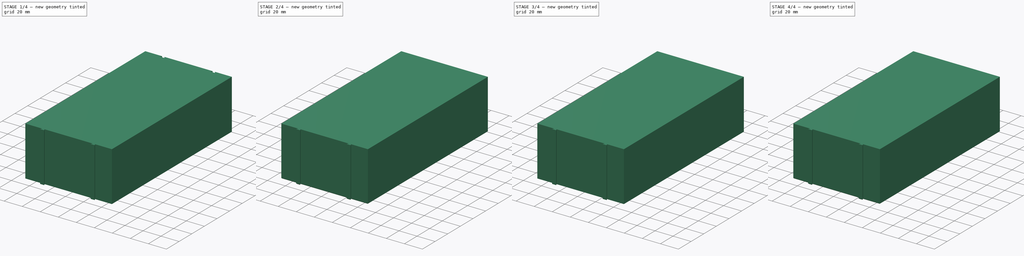
[diagram: build sequence overview — one tinted view per stage of 4, left to right]
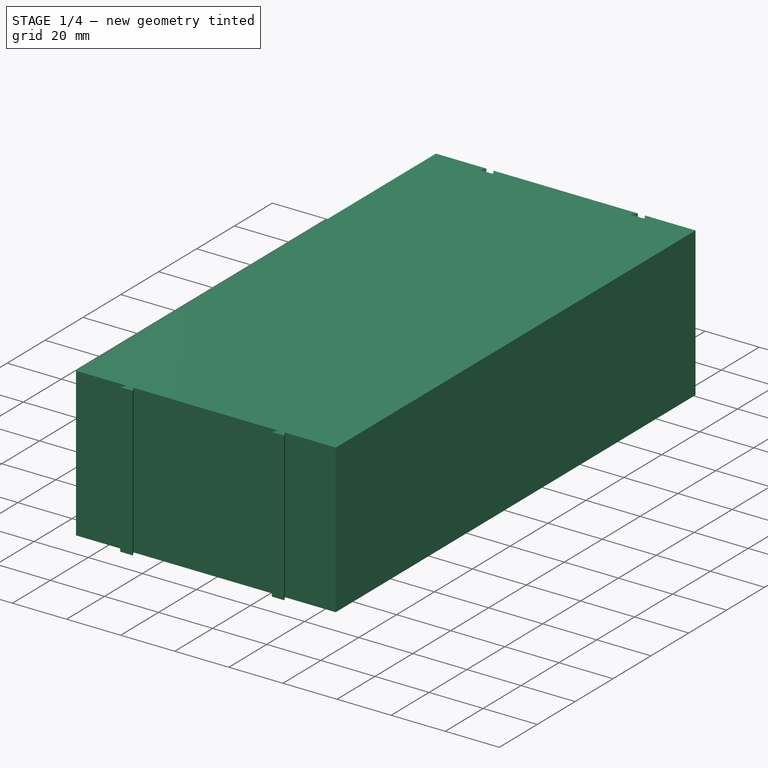
[diagram: stage 1 of 4 — iso view after this stage's code; geometry added in this stage tinted green]
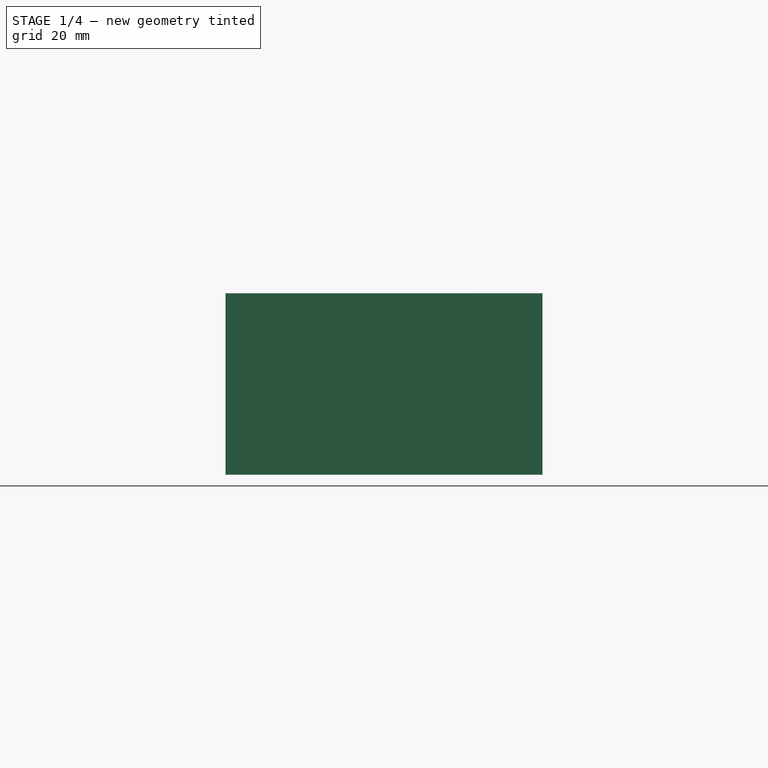
[diagram: stage 1 of 4 — front view after this stage's code; geometry added in this stage tinted green]
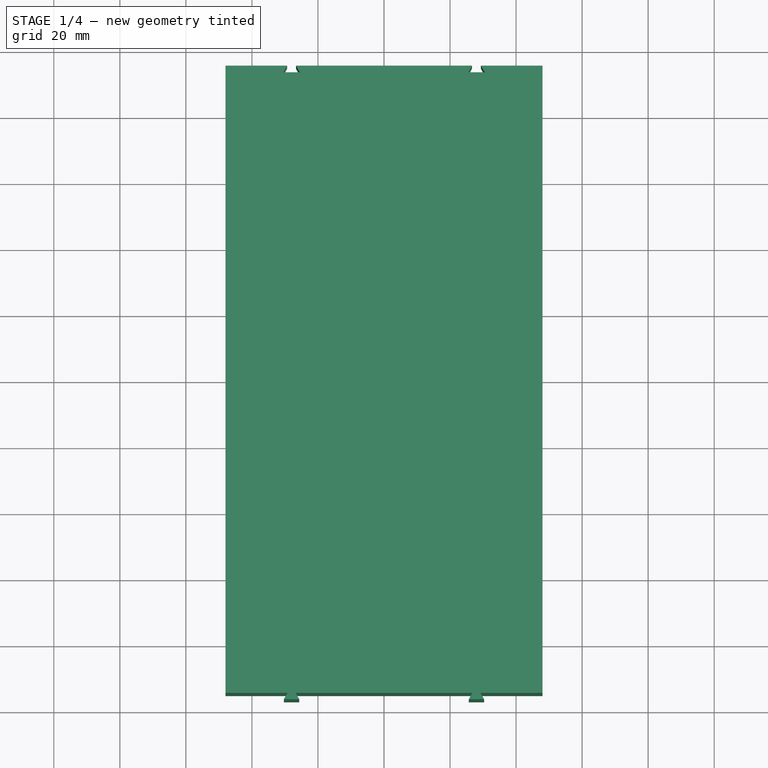
[diagram: stage 1 of 4 — top view after this stage's code; geometry added in this stage tinted green]
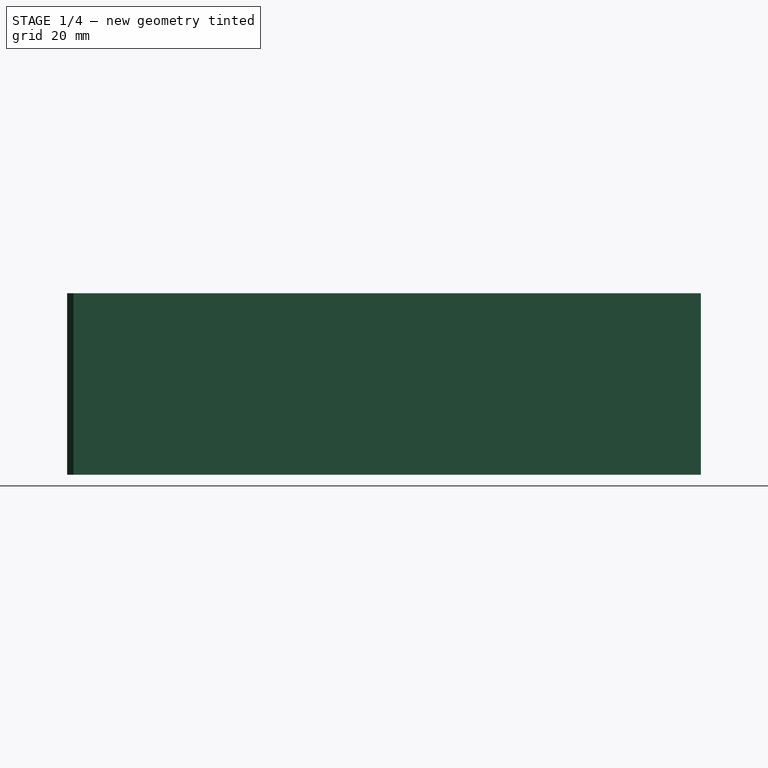
[diagram: stage 1 of 4 — right view after this stage's code; geometry added in this stage tinted green]
FCSTD DOCUMENT  (FreeCAD 0.22R34137 (Git))
Label: DrawerInsert
License: All rights reserved
LicenseURL: http://en.wikipedia.org/wiki/All_rights_reserved
objects: Sketcher::SketchObject×7, PartDesign::Body×7, PartDesign::ShapeBinder×6, PartDesign::Pad×6, PartDesign::Chamfer×6, Spreadsheet::Sheet×1
note: 44 computed .brp shape members not serialized (recipe doc carries the construction recipe); baked Part::Feature solids carry a one-line shape summary decoded from their .brp

FEATURE [PartDesign::Body] Body004  label="TL"
  Group = -> [ShapeBinder003,Sketch005,Pad003,Chamfer003]
  Origin = -> Origin004
  Tip = -> Chamfer003
FEATURE [PartDesign::ShapeBinder] ShapeBinder004
  Support = -> [Sketch002]
  TraceSupport = false
FEATURE [Sketcher::SketchObject] Sketch006
  ExternalGeometry = -> [ShapeBinder004]
  FullyConstrained = true
  MapMode = 5
  Support = -> [XY_Plane005]
  sketch-geometry (32):
    g0: LineSegment StartX=48 StartY=95 StartZ=0 EndX=29.3453 EndY=95 EndZ=0
    g1: LineSegment StartX=29.3453 StartY=95 StartZ=0 EndX=30.5 EndY=93 EndZ=0
    g2: LineSegment StartX=30.5 StartY=93 StartZ=0 EndX=25.5 EndY=93 EndZ=0
    g3: LineSegment StartX=25.5 StartY=93 StartZ=0 EndX=26.6547 EndY=95 EndZ=0
    g4: LineSegment StartX=26.6547 StartY=95 StartZ=0 EndX=-26.6547 EndY=95 EndZ=0
    g5: LineSegment StartX=-26.6547 StartY=95 StartZ=0 EndX=-25.5 EndY=93 EndZ=0
    g6: LineSegment StartX=-25.5 StartY=93 StartZ=0 EndX=-30.5 EndY=93 EndZ=0
    g7: LineSegment StartX=-30.5 StartY=93 StartZ=0 EndX=-29.3453 EndY=95 EndZ=0
    g8: LineSegment StartX=-29.3453 StartY=95 StartZ=0 EndX=-48 EndY=95 EndZ=0
    g9: LineSegment StartX=-48 StartY=95 StartZ=0 EndX=-48 EndY=76.2298 EndZ=0
    g10: LineSegment StartX=-48 StartY=76.2298 StartZ=0 EndX=-46.1 EndY=77.3268 EndZ=0
    g11: LineSegment StartX=-46.1 StartY=77.3268 StartZ=0 EndX=-46.1 EndY=72.6732 EndZ=0
    g12: LineSegment StartX=-46.1 StartY=72.6732 StartZ=0 EndX=-48 EndY=73.7702 EndZ=0
    g13: LineSegment StartX=-48 StartY=73.7702 StartZ=0 EndX=-48 EndY=1.22983 EndZ=0
    g14: LineSegment StartX=-48 StartY=1.22983 StartZ=0 EndX=-46.1 EndY=2.32679 EndZ=0
    g15: LineSegment StartX=-46.1 StartY=2.32679 StartZ=0 EndX=-46.1 EndY=-2.32679 EndZ=0
    g16: LineSegment StartX=-46.1 StartY=-2.32679 StartZ=0 EndX=-48 EndY=-1.22983 EndZ=0
    g17: LineSegment StartX=-48 StartY=-1.22983 StartZ=0 EndX=-48 EndY=-73.7702 EndZ=0
    g18: LineSegment StartX=-48 StartY=-73.7702 StartZ=0 EndX=-46.1 EndY=-72.6732 EndZ=0
    g19: LineSegment StartX=-46.1 StartY=-72.6732 StartZ=0 EndX=-46.1 EndY=-77.3268 EndZ=0
    g20: LineSegment StartX=-46.1 StartY=-77.3268 StartZ=0 EndX=-48 EndY=-76.2298 EndZ=0
    g21: LineSegment StartX=-48 StartY=-76.2298 StartZ=0 EndX=-48 EndY=-95 EndZ=0
    g22: LineSegment StartX=-48 StartY=-95 StartZ=0 EndX=-29.2298 EndY=-95 EndZ=0
    g23: LineSegment StartX=-29.2298 StartY=-95 StartZ=0 EndX=-30.3268 EndY=-96.9 EndZ=0
    g24: LineSegment StartX=-30.3268 StartY=-96.9 StartZ=0 EndX=-25.6732 EndY=-96.9 EndZ=0
    g25: LineSegment StartX=-25.6732 StartY=-96.9 StartZ=0 EndX=-26.7702 EndY=-95 EndZ=0
    g26: LineSegment StartX=-26.7702 StartY=-95 StartZ=0 EndX=26.7702 EndY=-95 EndZ=0
    g27: LineSegment StartX=26.7702 StartY=-95 StartZ=0 EndX=25.6732 EndY=-96.9 EndZ=0
    g28: LineSegment StartX=25.6732 StartY=-96.9 StartZ=0 EndX=30.3268 EndY=-96.9 EndZ=0
    g29: LineSegment StartX=30.3268 StartY=-96.9 StartZ=0 EndX=29.2298 EndY=-95 EndZ=0
    g30: LineSegment StartX=29.2298 StartY=-95 StartZ=0 EndX=48 EndY=-95 EndZ=0
    g31: LineSegment StartX=48 StartY=-95 StartZ=0 EndX=48 EndY=95 EndZ=0
  constraints (64):
    c: Coincident(g-8,g0)
    c: Coincident(g0,g-8)
    c: Coincident(g0,g1)
    c: Coincident(g1,g-9)
    c: Coincident(g1,g2)
    c: Coincident(g2,g-9)
    c: Coincident(g2,g3)
    c: Coincident(g3,g-10)
    c: Coincident(g3,g4)
    c: Coincident(g4,g-10)
    c: Coincident(g4,g5)
    c: Coincident(g5,g-11)
    c: Coincident(g5,g6)
    c: Coincident(g6,g-11)
    c: Coincident(g6,g7)
    c: Coincident(g7,g-12)
    c: Coincident(g7,g8)
    c: Coincident(g8,g-12)
    c: Coincident(g8,g9)
    c: Coincident(g9,g-13)
    c: Coincident(g9,g10)
    c: Coincident(g10,g-13)
    c: Coincident(g10,g11)
    c: Coincident(g11,g-14)
    c: Coincident(g11,g12)
    c: Coincident(g12,g-14)
    c: Coincident(g12,g13)
    c: Coincident(g13,g-18)
    c: Coincident(g13,g14)
    c: Coincident(g14,g-18)
    c: Coincident(g14,g15)
    c: Coincident(g15,g-17)
    c: Coincident(g15,g16)
    c: Coincident(g16,g-17)
    c: Coincident(g16,g17)
    c: Coincident(g17,g-16)
    c: Coincident(g17,g18)
    c: Coincident(g18,g-16)
    c: Coincident(g18,g19)
    c: Coincident(g19,g-15)
    c: Coincident(g19,g20)
    c: Coincident(g20,g-15)
    c: Coincident(g20,g21)
    c: Coincident(g21,g-3)
    c: Coincident(g21,g22)
    c: Coincident(g22,g-3)
    c: Coincident(g22,g23)
    c: Coincident(g23,g-4)
    c: Coincident(g23,g24)
    c: Coincident(g24,g-4)
    c: Coincident(g24,g25)
    c: Coincident(g25,g-5)
    c: Coincident(g25,g26)
    c: Coincident(g26,g-5)
    c: Coincident(g26,g27)
    c: Coincident(g27,g-6)
    c: Coincident(g27,g28)
    c: Coincident(g28,g-6)
    c: Coincident(g28,g29)
    c: Coincident(g29,g-7)
    c: Coincident(g29,g30)
    c: Coincident(g30,g-7)
    c: Coincident(g31,g0)
    c: Coincident(g31,g30)
FEATURE [PartDesign::Pad] Pad004
  Direction = (0,0,1)
  Length = 55
  Length2 = 10
  Profile = -> Sketch006
  ReferenceAxis = -> Sketch006 [N_Axis]
  Type = 0
  expr: Length = <<Spreadsheet>>.Height
FEATURE [PartDesign::Body] Body005  label="CR"
  Group = -> [ShapeBinder004,Sketch006,Pad004,Chamfer004]
  Origin = -> Origin005
  Tip = -> Chamfer004
FEATURE [PartDesign::ShapeBinder] ShapeBinder005
  Support = -> [Sketch002]
  TraceSupport = false
FEATURE [Sketcher::SketchObject] Sketch007
  ExternalGeometry = -> [ShapeBinder005]
  FullyConstrained = true
  MapMode = 5
  Support = -> [XY_Plane006]
  sketch-geometry (32):
    g0: LineSegment StartX=48 StartY=95 StartZ=0 EndX=29.3453 EndY=95 EndZ=0
    g1: LineSegment StartX=29.3453 StartY=95 StartZ=0 EndX=30.5 EndY=93 EndZ=0
    g2: LineSegment StartX=30.5 StartY=93 StartZ=0 EndX=25.5 EndY=93 EndZ=0
    g3: LineSegment StartX=25.5 StartY=93 StartZ=0 EndX=26.6547 EndY=95 EndZ=0
    g4: LineSegment StartX=26.6547 StartY=95 StartZ=0 EndX=-26.6547 EndY=95 EndZ=0
    g5: LineSegment StartX=-26.6547 StartY=95 StartZ=0 EndX=-25.5 EndY=93 EndZ=0
    g6: LineSegment StartX=-25.5 StartY=93 StartZ=0 EndX=-30.5 EndY=93 EndZ=0
    g7: LineSegment StartX=-30.5 StartY=93 StartZ=0 EndX=-29.3453 EndY=95 EndZ=0
    g8: LineSegment StartX=-29.3453 StartY=95 StartZ=0 EndX=-48 EndY=95 EndZ=0
    g9: LineSegment StartX=-48 StartY=95 StartZ=0 EndX=-48 EndY=-95 EndZ=0
    g10: LineSegment StartX=-48 StartY=-95 StartZ=0 EndX=-29.2298 EndY=-95 EndZ=0
    g11: LineSegment StartX=-29.2298 StartY=-95 StartZ=0 EndX=-30.3268 EndY=-96.9 EndZ=0
    g12: LineSegment StartX=-30.3268 StartY=-96.9 StartZ=0 EndX=-25.6732 EndY=-96.9 EndZ=0
    g13: LineSegment StartX=-25.6732 StartY=-96.9 StartZ=0 EndX=-26.7702 EndY=-95 EndZ=0
    g14: LineSegment StartX=-26.7702 StartY=-95 StartZ=0 EndX=26.7702 EndY=-95 EndZ=0
    g15: LineSegment StartX=26.7702 StartY=-95 StartZ=0 EndX=25.6732 EndY=-96.9 EndZ=0
    g16: LineSegment StartX=25.6732 StartY=-96.9 StartZ=0 EndX=30.3268 EndY=-96.9 EndZ=0
    g17: LineSegment StartX=30.3268 StartY=-96.9 StartZ=0 EndX=29.2298 EndY=-95 EndZ=0
    g18: LineSegment StartX=29.2298 StartY=-95 StartZ=0 EndX=48 EndY=-95 EndZ=0
    g19: LineSegment StartX=48 StartY=-95 StartZ=0 EndX=48 EndY=-76.3453 EndZ=0
    g20: LineSegment StartX=48 StartY=-76.3453 StartZ=0 EndX=46 EndY=-77.5 EndZ=0
    g21: LineSegment StartX=46 StartY=-77.5 StartZ=0 EndX=46 EndY=-72.5 EndZ=0
    g22: LineSegment StartX=46 StartY=-72.5 StartZ=0 EndX=48 EndY=-73.6547 EndZ=0
    g23: LineSegment StartX=48 StartY=-73.6547 StartZ=0 EndX=48 EndY=-1.3453 EndZ=0
    g24: LineSegment StartX=48 StartY=-1.3453 StartZ=0 EndX=46 EndY=-2.5 EndZ=0
    g25: LineSegment StartX=46 StartY=-2.5 StartZ=0 EndX=46 EndY=2.5 EndZ=0
    g26: LineSegment StartX=46 StartY=2.5 StartZ=0 EndX=48 EndY=1.3453 EndZ=0
    g27: LineSegment StartX=48 StartY=1.3453 StartZ=0 EndX=48 EndY=73.6547 EndZ=0
    g28: LineSegment StartX=48 StartY=73.6547 StartZ=0 EndX=46 EndY=72.5 EndZ=0
    g29: LineSegment StartX=46 StartY=72.5 StartZ=0 EndX=46 EndY=77.5 EndZ=0
    g30: LineSegment StartX=46 StartY=77.5 StartZ=0 EndX=48 EndY=76.3453 EndZ=0
    g31: LineSegment StartX=48 StartY=76.3453 StartZ=0 EndX=48 EndY=95 EndZ=0
  constraints (64):
    c: Coincident(g-14,g0)
    c: Coincident(g0,g-14)
    c: Coincident(g0,g1)
    c: Coincident(g1,g-15)
    c: Coincident(g1,g2)
    c: Coincident(g2,g-15)
    c: Coincident(g2,g3)
    c: Coincident(g3,g-16)
    c: Coincident(g3,g4)
    c: Coincident(g4,g-16)
    c: Coincident(g4,g5)
    c: Coincident(g5,g-17)
    c: Coincident(g5,g6)
    c: Coincident(g6,g-17)
    c: Coincident(g6,g7)
    c: Coincident(g7,g-18)
    c: Coincident(g7,g8)
    c: Coincident(g8,g-18)
    c: Coincident(g8,g9)
    c: Coincident(g10,g-3)
    c: Coincident(g10,g11)
    c: Coincident(g11,g-4)
    c: Coincident(g11,g12)
    c: Coincident(g12,g-4)
    c: Coincident(g12,g13)
    c: Coincident(g13,g-5)
    c: Coincident(g13,g14)
    c: Coincident(g14,g-5)
    c: Coincident(g14,g15)
    c: Coincident(g15,g-6)
    c: Coincident(g15,g16)
    c: Coincident(g16,g-6)
    c: Coincident(g16,g17)
    c: Coincident(g17,g-7)
    c: Coincident(g17,g18)
    c: Coincident(g18,g-7)
    c: Coincident(g18,g19)
    c: Coincident(g19,g-8)
    c: Coincident(g19,g20)
    c: Coincident(g20,g-8)
    c: Coincident(g20,g21)
    c: Coincident(g21,g-9)
    c: Coincident(g21,g22)
    c: Coincident(g22,g-9)
    c: Coincident(g22,g23)
    c: Coincident(g23,g-10)
    c: Coincident(g23,g24)
    c: Coincident(g24,g-10)
    c: Coincident(g24,g25)
    c: Coincident(g25,g-11)
    c: Coincident(g25,g26)
    c: Coincident(g26,g-11)
    c: Coincident(g26,g27)
    c: Coincident(g27,g-12)
    c: Coincident(g27,g28)
    c: Coincident(g28,g-12)
    c: Coincident(g28,g29)
    c: Coincident(g29,g-13)
    c: Coincident(g29,g30)
    c: Coincident(g30,g-13)
    c: Coincident(g30,g31)
    c: Coincident(g31,g0)
    c: Coincident(g9,g10)
    c: Coincident(g9,g-3)
FEATURE [PartDesign::Pad] Pad005
  Direction = (0,0,1)
  Length = 55
  Length2 = 10
  Profile = -> Sketch007
  ReferenceAxis = -> Sketch007 [N_Axis]
  Type = 0
  expr: Length = <<Spreadsheet>>.Height
FEATURE [PartDesign::Chamfer] Chamfer005
  Angle = 45
  Base = -> Pad005 [Face33]
  BaseFeature = -> Pad005
  ChamferType = 0
  FlipDirection = false
  Size = 0.5
  Size2 = 1
  SupportTransform = false
  UseAllEdges = false
FEATURE [PartDesign::Body] Body006  label="CL"
  Group = -> [ShapeBinder005,Sketch007,Pad005,Chamfer005]
  Origin = -> Origin006
  Tip = -> Chamfer005
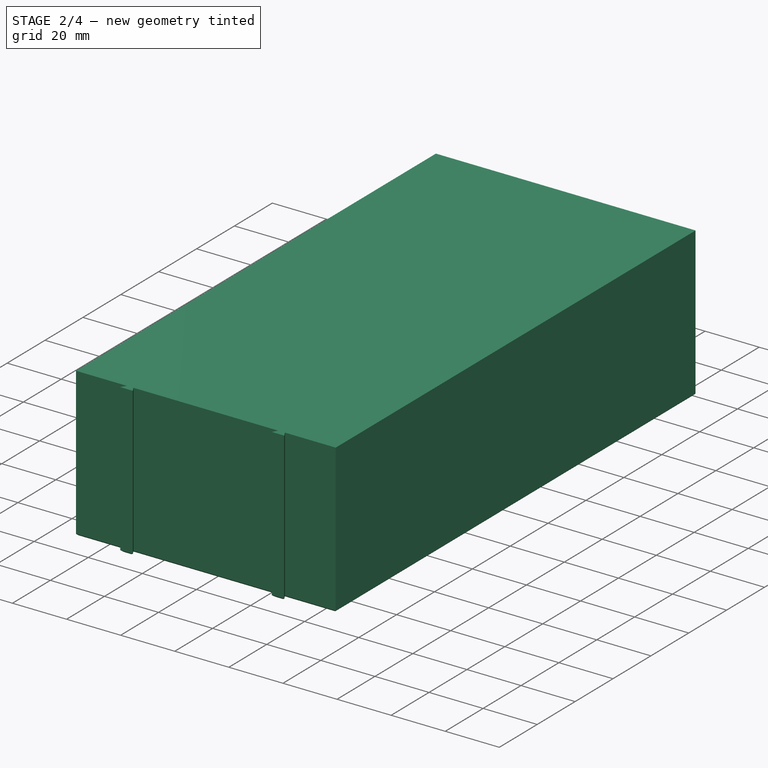
[diagram: stage 2 of 4 — iso view after this stage's code; geometry added in this stage tinted green]
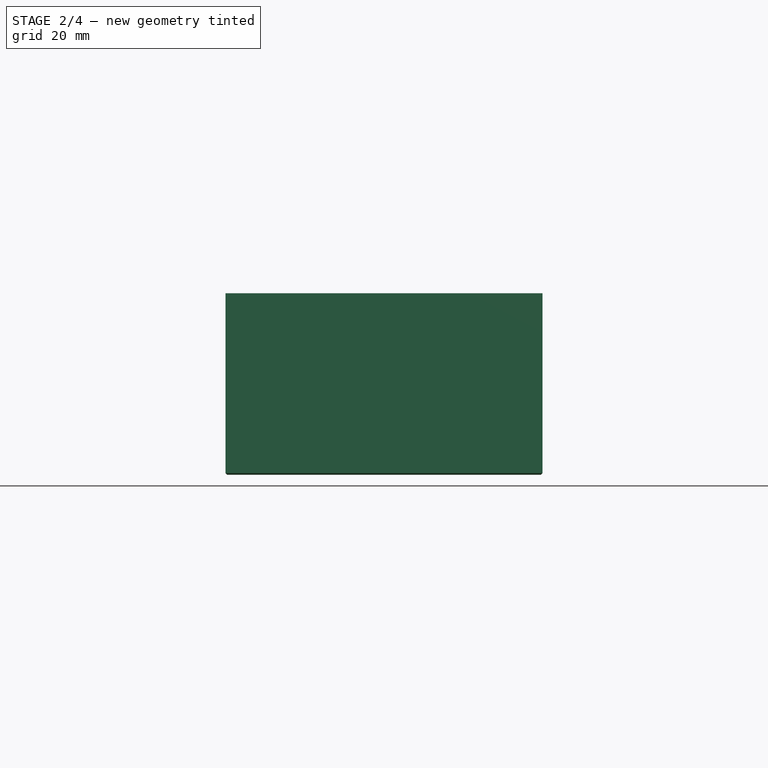
[diagram: stage 2 of 4 — front view after this stage's code; geometry added in this stage tinted green]
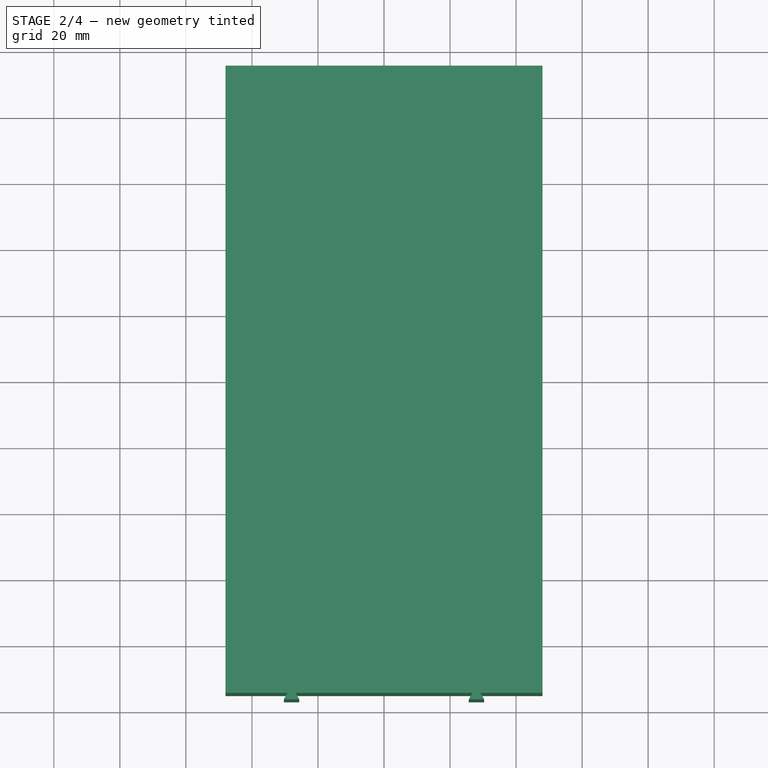
[diagram: stage 2 of 4 — top view after this stage's code; geometry added in this stage tinted green]
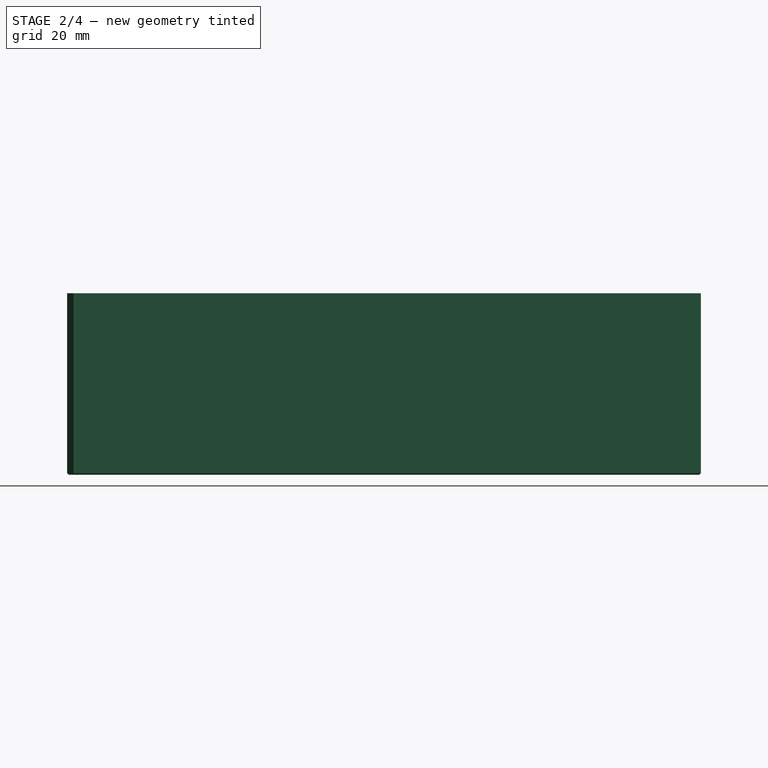
[diagram: stage 2 of 4 — right view after this stage's code; geometry added in this stage tinted green]
FEATURE [PartDesign::Body] Body003  label="TC"
  Group = -> [ShapeBinder002,Sketch004,Pad002,Chamfer002]
  Origin = -> Origin003
  Tip = -> Chamfer002
FEATURE [PartDesign::ShapeBinder] ShapeBinder003
  Support = -> [Sketch002]
  TraceSupport = false
FEATURE [Sketcher::SketchObject] Sketch005
  ExternalGeometry = -> [ShapeBinder003]
  FullyConstrained = true
  MapMode = 5
  Support = -> [XY_Plane004]
  sketch-geometry (24):
    g0: LineSegment StartX=48 StartY=95 StartZ=0 EndX=-48 EndY=95 EndZ=0
    g1: LineSegment StartX=-48 StartY=95 StartZ=0 EndX=-48 EndY=-95 EndZ=0
    g2: LineSegment StartX=-48 StartY=-95 StartZ=0 EndX=-29.2298 EndY=-95 EndZ=0
    g3: LineSegment StartX=-29.2298 StartY=-95 StartZ=0 EndX=-30.3268 EndY=-96.9 EndZ=0
    g4: LineSegment StartX=-30.3268 StartY=-96.9 StartZ=0 EndX=-25.6732 EndY=-96.9 EndZ=0
    g5: LineSegment StartX=-25.6732 StartY=-96.9 StartZ=0 EndX=-26.7702 EndY=-95 EndZ=0
    g6: LineSegment StartX=-26.7702 StartY=-95 StartZ=0 EndX=26.7702 EndY=-95 EndZ=0
    g7: LineSegment StartX=26.7702 StartY=-95 StartZ=0 EndX=25.6732 EndY=-96.9 EndZ=0
    g8: LineSegment StartX=25.6732 StartY=-96.9 StartZ=0 EndX=30.3268 EndY=-96.9 EndZ=0
    g9: LineSegment StartX=30.3268 StartY=-96.9 StartZ=0 EndX=29.2298 EndY=-95 EndZ=0
    g10: LineSegment StartX=29.2298 StartY=-95 StartZ=0 EndX=48 EndY=-95 EndZ=0
    g11: LineSegment StartX=48 StartY=-95 StartZ=0 EndX=48 EndY=-76.3453 EndZ=0
    g12: LineSegment StartX=48 StartY=-76.3453 StartZ=0 EndX=46 EndY=-77.5 EndZ=0
    g13: LineSegment StartX=46 StartY=-77.5 StartZ=0 EndX=46 EndY=-72.5 EndZ=0
    g14: LineSegment StartX=46 StartY=-72.5 StartZ=0 EndX=48 EndY=-73.6547 EndZ=0
    g15: LineSegment StartX=48 StartY=-73.6547 StartZ=0 EndX=48 EndY=-1.3453 EndZ=0
    g16: LineSegment StartX=48 StartY=-1.3453 StartZ=0 EndX=46 EndY=-2.5 EndZ=0
    g17: LineSegment StartX=46 StartY=-2.5 StartZ=0 EndX=46 EndY=2.5 EndZ=0
    g18: LineSegment StartX=46 StartY=2.5 StartZ=0 EndX=48 EndY=1.3453 EndZ=0
    g19: LineSegment StartX=48 StartY=1.3453 StartZ=0 EndX=48 EndY=73.6547 EndZ=0
    g20: LineSegment StartX=48 StartY=73.6547 StartZ=0 EndX=46 EndY=72.5 EndZ=0
    g21: LineSegment StartX=46 StartY=72.5 StartZ=0 EndX=46 EndY=77.5 EndZ=0
    g22: LineSegment StartX=46 StartY=77.5 StartZ=0 EndX=48 EndY=76.3453 EndZ=0
    g23: LineSegment StartX=48 StartY=76.3453 StartZ=0 EndX=48 EndY=95 EndZ=0
  constraints (48):
    c: Coincident(g-14,g0)
    c: Coincident(g2,g-3)
    c: Coincident(g2,g3)
    c: Coincident(g3,g-4)
    c: Coincident(g3,g4)
    c: Coincident(g4,g-4)
    c: Coincident(g4,g5)
    c: Coincident(g5,g-5)
    c: Coincident(g5,g6)
    c: Coincident(g6,g-5)
    c: Coincident(g6,g7)
    c: Coincident(g7,g-6)
    c: Coincident(g7,g8)
    c: Coincident(g8,g-6)
    c: Coincident(g8,g9)
    c: Coincident(g9,g-7)
    c: Coincident(g9,g10)
    c: Coincident(g10,g-7)
    c: Coincident(g10,g11)
    c: Coincident(g11,g-8)
    c: Coincident(g11,g12)
    c: Coincident(g12,g-8)
    c: Coincident(g12,g13)
    c: Coincident(g13,g-9)
    c: Coincident(g13,g14)
    c: Coincident(g14,g-9)
    c: Coincident(g14,g15)
    c: Coincident(g15,g-10)
    c: Coincident(g15,g16)
    c: Coincident(g16,g-10)
    c: Coincident(g16,g17)
    c: Coincident(g17,g-11)
    c: Coincident(g17,g18)
    c: Coincident(g18,g-11)
    c: Coincident(g18,g19)
    c: Coincident(g19,g-12)
    c: Coincident(g19,g20)
    c: Coincident(g20,g-12)
    c: Coincident(g20,g21)
    c: Coincident(g21,g-13)
    c: Coincident(g21,g22)
    c: Coincident(g22,g-13)
    c: Coincident(g22,g23)
    c: Coincident(g23,g0)
    c: Coincident(g0,g1)
    c: Coincident(g0,g-15)
    c: Coincident(g2,g-3)
    c: Coincident(g2,g1)
FEATURE [PartDesign::Pad] Pad003
  Direction = (0,0,1)
  Length = 55
  Length2 = 10
  Profile = -> Sketch005
  ReferenceAxis = -> Sketch005 [N_Axis]
  Type = 0
  expr: Length = <<Spreadsheet>>.Height
FEATURE [PartDesign::Chamfer] Chamfer003
  Angle = 45
  Base = -> Pad003 [Face25]
  BaseFeature = -> Pad003
  ChamferType = 0
  FlipDirection = false
  Size = 0.5
  Size2 = 1
  SupportTransform = false
  UseAllEdges = false
FEATURE [PartDesign::Chamfer] Chamfer004
  Angle = 45
  Base = -> Pad004 [Face33]
  BaseFeature = -> Pad004
  ChamferType = 0
  FlipDirection = false
  Size = 0.5
  Size2 = 1
  SupportTransform = false
  UseAllEdges = false
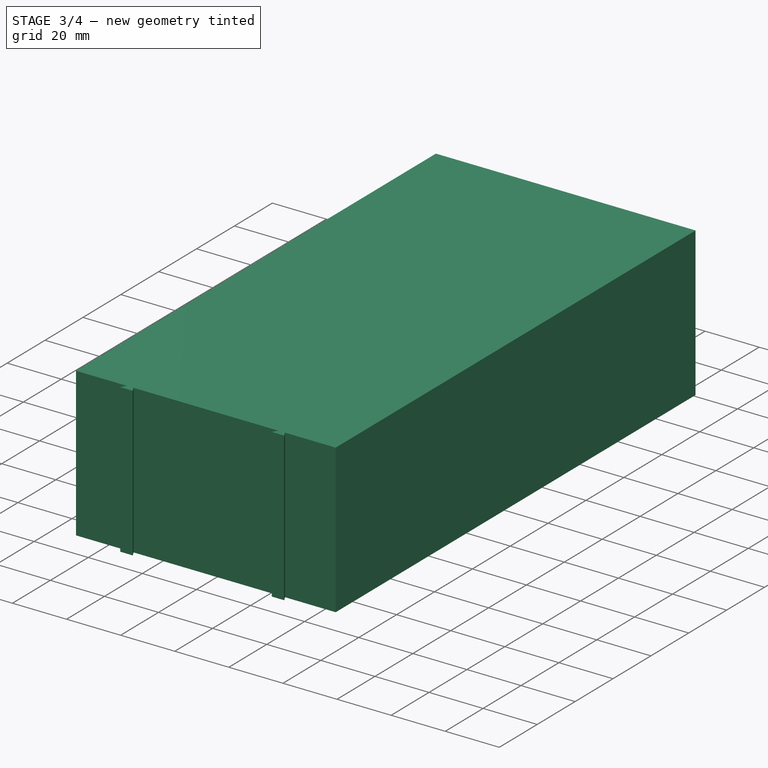
[diagram: stage 3 of 4 — iso view after this stage's code; geometry added in this stage tinted green]
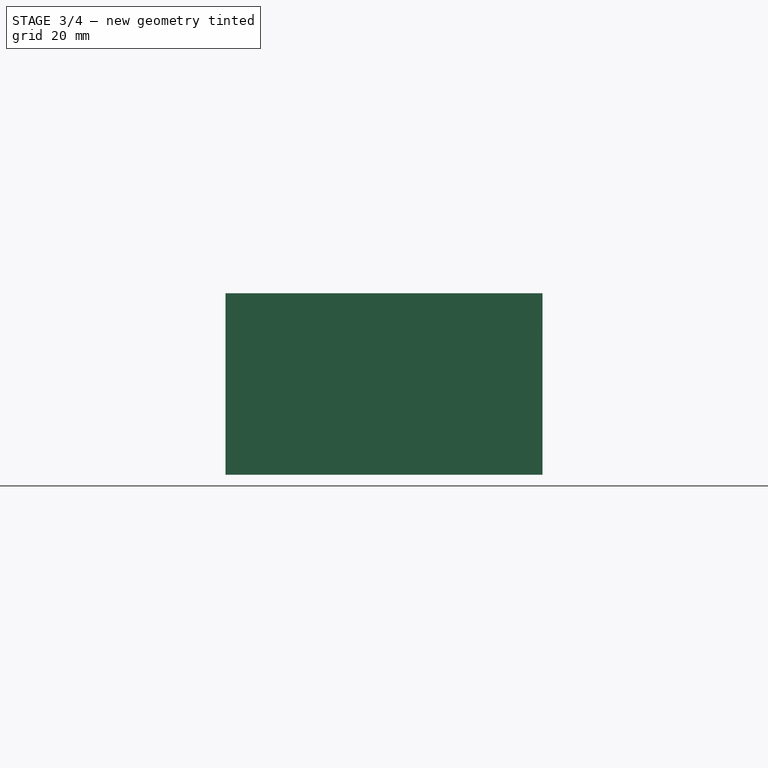
[diagram: stage 3 of 4 — front view after this stage's code; geometry added in this stage tinted green]
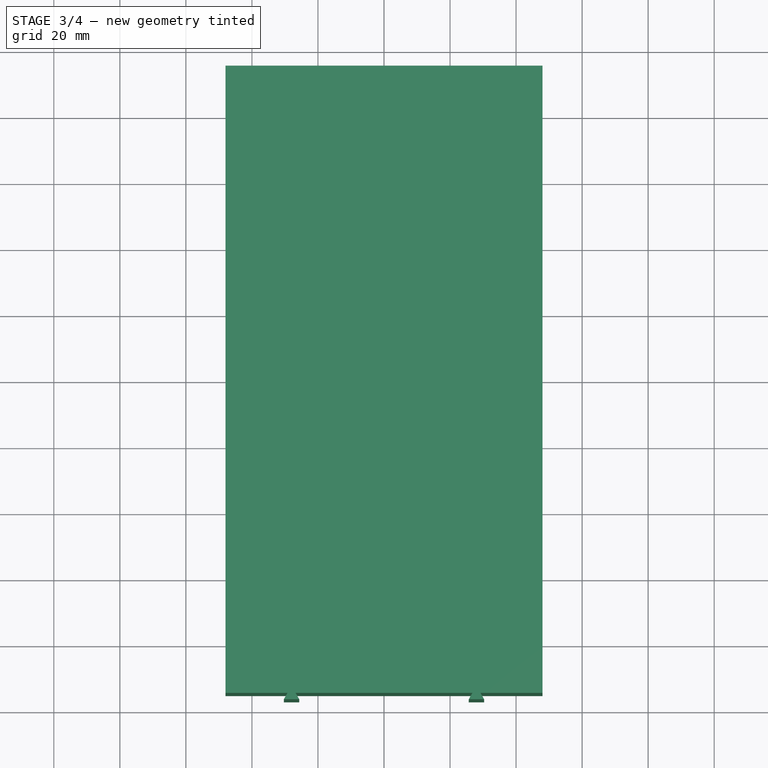
[diagram: stage 3 of 4 — top view after this stage's code; geometry added in this stage tinted green]
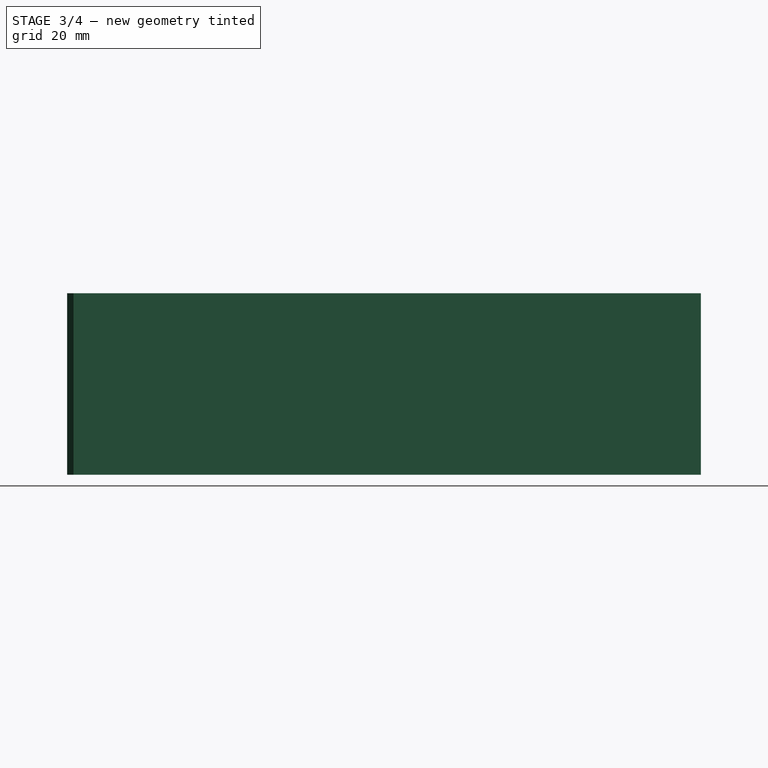
[diagram: stage 3 of 4 — right view after this stage's code; geometry added in this stage tinted green]
FEATURE [PartDesign::Body] Body001  label="CC"
  Group = -> [ShapeBinder,Sketch,Pad,Chamfer]
  Origin = -> Origin001
  Tip = -> Chamfer
FEATURE [PartDesign::ShapeBinder] ShapeBinder001
  Support = -> [Sketch002]
  TraceSupport = false
FEATURE [Sketcher::SketchObject] Sketch003
  ExternalGeometry = -> [ShapeBinder001]
  FullyConstrained = true
  MapMode = 5
  Support = -> [XY_Plane002]
  sketch-geometry (24):
    g0: LineSegment StartX=48 StartY=95 StartZ=0 EndX=-48 EndY=95 EndZ=0
    g1: LineSegment StartX=-48 StartY=95 StartZ=0 EndX=-48 EndY=76.2298 EndZ=0
    g2: LineSegment StartX=-48 StartY=76.2298 StartZ=0 EndX=-46.1 EndY=77.3268 EndZ=0
    g3: LineSegment StartX=-46.1 StartY=77.3268 StartZ=0 EndX=-46.1 EndY=72.6732 EndZ=0
    g4: LineSegment StartX=-46.1 StartY=72.6732 StartZ=0 EndX=-48 EndY=73.7702 EndZ=0
    g5: LineSegment StartX=-48 StartY=73.7702 StartZ=0 EndX=-48 EndY=1.22983 EndZ=0
    g6: LineSegment StartX=-48 StartY=1.22983 StartZ=0 EndX=-46.1 EndY=2.32679 EndZ=0
    g7: LineSegment StartX=-46.1 StartY=2.32679 StartZ=0 EndX=-46.1 EndY=-2.32679 EndZ=0
    g8: LineSegment StartX=-46.1 StartY=-2.32679 StartZ=0 EndX=-48 EndY=-1.22983 EndZ=0
    g9: LineSegment StartX=-48 StartY=-1.22983 StartZ=0 EndX=-48 EndY=-73.7702 EndZ=0
    g10: LineSegment StartX=-48 StartY=-73.7702 StartZ=0 EndX=-46.1 EndY=-72.6732 EndZ=0
    g11: LineSegment StartX=-46.1 StartY=-72.6732 StartZ=0 EndX=-46.1 EndY=-77.3268 EndZ=0
    g12: LineSegment StartX=-46.1 StartY=-77.3268 StartZ=0 EndX=-48 EndY=-76.2298 EndZ=0
    g13: LineSegment StartX=-48 StartY=-76.2298 StartZ=0 EndX=-48 EndY=-95 EndZ=0
    g14: LineSegment StartX=-48 StartY=-95 StartZ=0 EndX=-29.2298 EndY=-95 EndZ=0
    g15: LineSegment StartX=-29.2298 StartY=-95 StartZ=0 EndX=-30.3268 EndY=-96.9 EndZ=0
    g16: LineSegment StartX=-30.3268 StartY=-96.9 StartZ=0 EndX=-25.6732 EndY=-96.9 EndZ=0
    g17: LineSegment StartX=-25.6732 StartY=-96.9 StartZ=0 EndX=-26.7702 EndY=-95 EndZ=0
    g18: LineSegment StartX=-26.7702 StartY=-95 StartZ=0 EndX=26.7702 EndY=-95 EndZ=0
    g19: LineSegment StartX=26.7702 StartY=-95 StartZ=0 EndX=25.6732 EndY=-96.9 EndZ=0
    g20: LineSegment StartX=25.6732 StartY=-96.9 StartZ=0 EndX=30.3268 EndY=-96.9 EndZ=0
    g21: LineSegment StartX=30.3268 StartY=-96.9 StartZ=0 EndX=29.2298 EndY=-95 EndZ=0
    g22: LineSegment StartX=29.2298 StartY=-95 StartZ=0 EndX=48 EndY=-95 EndZ=0
    g23: LineSegment StartX=48 StartY=-95 StartZ=0 EndX=48 EndY=95 EndZ=0
  constraints (48):
    c: Coincident(g0,g-9)
    c: Coincident(g0,g1)
    c: Coincident(g1,g-10)
    c: Coincident(g1,g2)
    c: Coincident(g2,g-10)
    c: Coincident(g2,g3)
    c: Coincident(g3,g-11)
    c: Coincident(g3,g4)
    c: Coincident(g4,g-11)
    c: Coincident(g4,g5)
    c: Coincident(g5,g-15)
    c: Coincident(g5,g6)
    c: Coincident(g6,g-15)
    c: Coincident(g6,g7)
    c: Coincident(g7,g-14)
    c: Coincident(g7,g8)
    c: Coincident(g8,g-14)
    c: Coincident(g8,g9)
    c: Coincident(g9,g-13)
    c: Coincident(g9,g10)
    c: Coincident(g10,g-13)
    c: Coincident(g10,g11)
    c: Coincident(g11,g-12)
    c: Coincident(g11,g12)
    c: Coincident(g12,g-12)
    c: Coincident(g12,g13)
    c: Coincident(g13,g-3)
    c: Coincident(g13,g14)
    c: Coincident(g14,g-3)
    c: Coincident(g14,g15)
    c: Coincident(g15,g-4)
    c: Coincident(g15,g16)
    c: Coincident(g16,g-4)
    c: Coincident(g16,g17)
    c: Coincident(g17,g-5)
    c: Coincident(g17,g18)
    c: Coincident(g18,g-5)
    c: Coincident(g18,g19)
    c: Coincident(g19,g-6)
    c: Coincident(g19,g20)
    c: Coincident(g20,g-6)
    c: Coincident(g20,g21)
    c: Coincident(g21,g-7)
    c: Coincident(g21,g22)
    c: Coincident(g22,g-7)
    c: Coincident(g0,g23)
    c: Coincident(g0,g-8)
    c: Coincident(g23,g22)
FEATURE [PartDesign::Pad] Pad001
  Direction = (0,0,1)
  Length = 55
  Length2 = 10
  Profile = -> Sketch003
  ReferenceAxis = -> Sketch003 [N_Axis]
  Type = 0
  expr: Length = <<Spreadsheet>>.Height
FEATURE [PartDesign::Body] Body002  label="TR"
  Group = -> [ShapeBinder001,Sketch003,Pad001,Chamfer001]
  Origin = -> Origin002
  Tip = -> Chamfer001
FEATURE [PartDesign::ShapeBinder] ShapeBinder002
  Support = -> [Sketch002]
  TraceSupport = false
FEATURE [Sketcher::SketchObject] Sketch004
  ExternalGeometry = -> [ShapeBinder002]
  FullyConstrained = true
  MapMode = 5
  Support = -> [XY_Plane003]
  sketch-geometry (36):
    g0: LineSegment StartX=48 StartY=95 StartZ=0 EndX=-48 EndY=95 EndZ=0
    g1: LineSegment StartX=-48 StartY=95 StartZ=0 EndX=-48 EndY=76.2298 EndZ=0
    g2: LineSegment StartX=-48 StartY=76.2298 StartZ=0 EndX=-46.1 EndY=77.3268 EndZ=0
    g3: LineSegment StartX=-46.1 StartY=77.3268 StartZ=0 EndX=-46.1 EndY=72.6732 EndZ=0
    g4: LineSegment StartX=-46.1 StartY=72.6732 StartZ=0 EndX=-48 EndY=73.7702 EndZ=0
    g5: LineSegment StartX=-48 StartY=73.7702 StartZ=0 EndX=-48 EndY=1.22983 EndZ=0
    g6: LineSegment StartX=-48 StartY=1.22983 StartZ=0 EndX=-46.1 EndY=2.32679 EndZ=0
    g7: LineSegment StartX=-46.1 StartY=2.32679 StartZ=0 EndX=-46.1 EndY=-2.32679 EndZ=0
    g8: LineSegment StartX=-46.1 StartY=-2.32679 StartZ=0 EndX=-48 EndY=-1.22983 EndZ=0
    g9: LineSegment StartX=-48 StartY=-1.22983 StartZ=0 EndX=-48 EndY=-73.7702 EndZ=0
    g10: LineSegment StartX=-48 StartY=-73.7702 StartZ=0 EndX=-46.1 EndY=-72.6732 EndZ=0
    g11: LineSegment StartX=-46.1 StartY=-72.6732 StartZ=0 EndX=-46.1 EndY=-77.3268 EndZ=0
    g12: LineSegment StartX=-46.1 StartY=-77.3268 StartZ=0 EndX=-48 EndY=-76.2298 EndZ=0
    g13: LineSegment StartX=-48 StartY=-76.2298 StartZ=0 EndX=-48 EndY=-95 EndZ=0
    g14: LineSegment StartX=-48 StartY=-95 StartZ=0 EndX=-29.2298 EndY=-95 EndZ=0
    g15: LineSegment StartX=-29.2298 StartY=-95 StartZ=0 EndX=-30.3268 EndY=-96.9 EndZ=0
    g16: LineSegment StartX=-30.3268 StartY=-96.9 StartZ=0 EndX=-25.6732 EndY=-96.9 EndZ=0
    g17: LineSegment StartX=-25.6732 StartY=-96.9 StartZ=0 EndX=-26.7702 EndY=-95 EndZ=0
    g18: LineSegment StartX=-26.7702 StartY=-95 StartZ=0 EndX=26.7702 EndY=-95 EndZ=0
    g19: LineSegment StartX=26.7702 StartY=-95 StartZ=0 EndX=25.6732 EndY=-96.9 EndZ=0
    g20: LineSegment StartX=25.6732 StartY=-96.9 StartZ=0 EndX=30.3268 EndY=-96.9 EndZ=0
    g21: LineSegment StartX=30.3268 StartY=-96.9 StartZ=0 EndX=29.2298 EndY=-95 EndZ=0
    g22: LineSegment StartX=29.2298 StartY=-95 StartZ=0 EndX=48 EndY=-95 EndZ=0
    g23: LineSegment StartX=48 StartY=-95 StartZ=0 EndX=48 EndY=-76.3453 EndZ=0
    g24: LineSegment StartX=48 StartY=-76.3453 StartZ=0 EndX=46 EndY=-77.5 EndZ=0
    g25: LineSegment StartX=46 StartY=-77.5 StartZ=0 EndX=46 EndY=-72.5 EndZ=0
    g26: LineSegment StartX=46 StartY=-72.5 StartZ=0 EndX=48 EndY=-73.6547 EndZ=0
    g27: LineSegment StartX=48 StartY=-73.6547 StartZ=0 EndX=48 EndY=-1.3453 EndZ=0
    g28: LineSegment StartX=48 StartY=-1.3453 StartZ=0 EndX=46 EndY=-2.5 EndZ=0
    g29: LineSegment StartX=46 StartY=-2.5 StartZ=0 EndX=46 EndY=2.5 EndZ=0
    g30: LineSegment StartX=46 StartY=2.5 StartZ=0 EndX=48 EndY=1.3453 EndZ=0
    g31: LineSegment StartX=48 StartY=1.3453 StartZ=0 EndX=48 EndY=73.6547 EndZ=0
    g32: LineSegment StartX=48 StartY=73.6547 StartZ=0 EndX=46 EndY=72.5 EndZ=0
    g33: LineSegment StartX=46 StartY=72.5 StartZ=0 EndX=46 EndY=77.5 EndZ=0
    g34: LineSegment StartX=46 StartY=77.5 StartZ=0 EndX=48 EndY=76.3453 EndZ=0
    g35: LineSegment StartX=48 StartY=76.3453 StartZ=0 EndX=48 EndY=95 EndZ=0
  constraints (72):
    c: Coincident(g0,g-15)
    c: Coincident(g0,g1)
    c: Coincident(g1,g-16)
    c: Coincident(g1,g2)
    c: Coincident(g2,g-16)
    c: Coincident(g2,g3)
    c: Coincident(g3,g-17)
    c: Coincident(g3,g4)
    c: Coincident(g4,g-17)
    c: Coincident(g4,g5)
    c: Coincident(g5,g-21)
    c: Coincident(g5,g6)
    c: Coincident(g6,g-21)
    c: Coincident(g6,g7)
    c: Coincident(g7,g-20)
    c: Coincident(g7,g8)
    c: Coincident(g8,g-20)
    c: Coincident(g8,g9)
    c: Coincident(g9,g-19)
    c: Coincident(g9,g10)
    c: Coincident(g10,g-19)
    c: Coincident(g10,g11)
    c: Coincident(g11,g-18)
    c: Coincident(g11,g12)
    c: Coincident(g12,g-18)
    c: Coincident(g12,g13)
    c: Coincident(g13,g-3)
    c: Coincident(g13,g14)
    c: Coincident(g14,g-3)
    c: Coincident(g14,g15)
    c: Coincident(g15,g-4)
    c: Coincident(g15,g16)
    c: Coincident(g16,g-4)
    c: Coincident(g16,g17)
    c: Coincident(g17,g-5)
    c: Coincident(g17,g18)
    c: Coincident(g18,g-5)
    c: Coincident(g18,g19)
    c: Coincident(g19,g-6)
    c: Coincident(g19,g20)
    c: Coincident(g20,g-6)
    c: Coincident(g20,g21)
    c: Coincident(g21,g-7)
    c: Coincident(g21,g22)
    c: Coincident(g22,g-7)
    c: Coincident(g22,g23)
    c: Coincident(g23,g-8)
    c: Coincident(g23,g24)
    c: Coincident(g24,g-8)
    c: Coincident(g24,g25)
    c: Coincident(g25,g-9)
    c: Coincident(g25,g26)
    c: Coincident(g26,g-9)
    c: Coincident(g26,g27)
    c: Coincident(g27,g-10)
    c: Coincident(g27,g28)
    c: Coincident(g28,g-10)
    c: Coincident(g28,g29)
    c: Coincident(g29,g-11)
    c: Coincident(g29,g30)
    c: Coincident(g30,g-11)
    c: Coincident(g30,g31)
    c: Coincident(g31,g-12)
    c: Coincident(g31,g32)
    c: Coincident(g32,g-12)
    c: Coincident(g32,g33)
    c: Coincident(g33,g-13)
    c: Coincident(g33,g34)
    c: Coincident(g34,g-13)
    c: Coincident(g34,g35)
    c: Coincident(g35,g-14)
    c: Coincident(g0,g35)
FEATURE [PartDesign::Pad] Pad002
  Direction = (0,0,1)
  Length = 55
  Length2 = 10
  Profile = -> Sketch004
  ReferenceAxis = -> Sketch004 [N_Axis]
  Type = 0
  expr: Length = <<Spreadsheet>>.Height
FEATURE [PartDesign::Chamfer] Chamfer002
  Angle = 45
  Base = -> Pad002 [Face37]
  BaseFeature = -> Pad002
  ChamferType = 0
  FlipDirection = false
  Size = 0.5
  Size2 = 1
  SupportTransform = false
  UseAllEdges = false
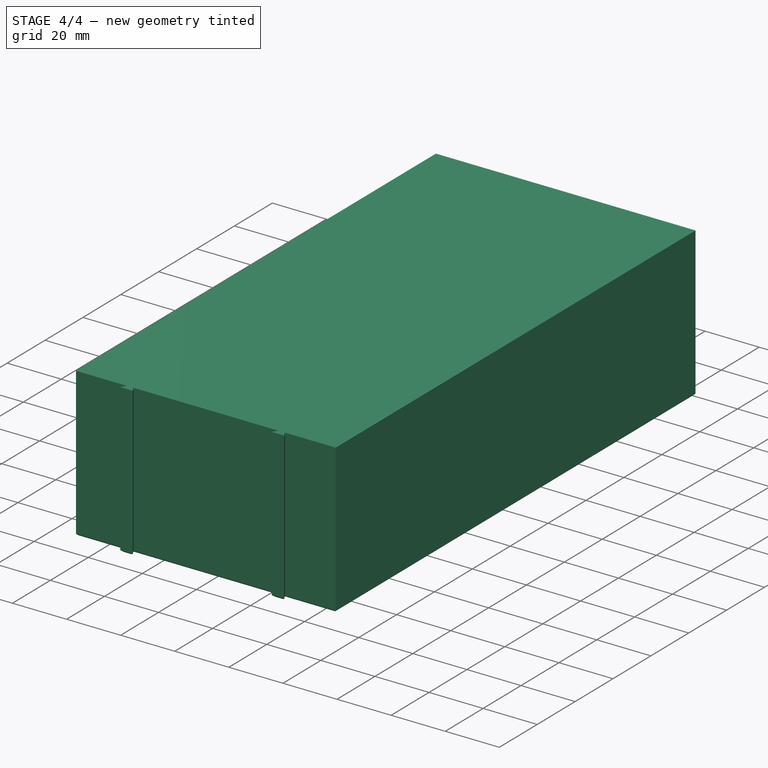
[diagram: stage 4 of 4 — iso view after this stage's code; geometry added in this stage tinted green]
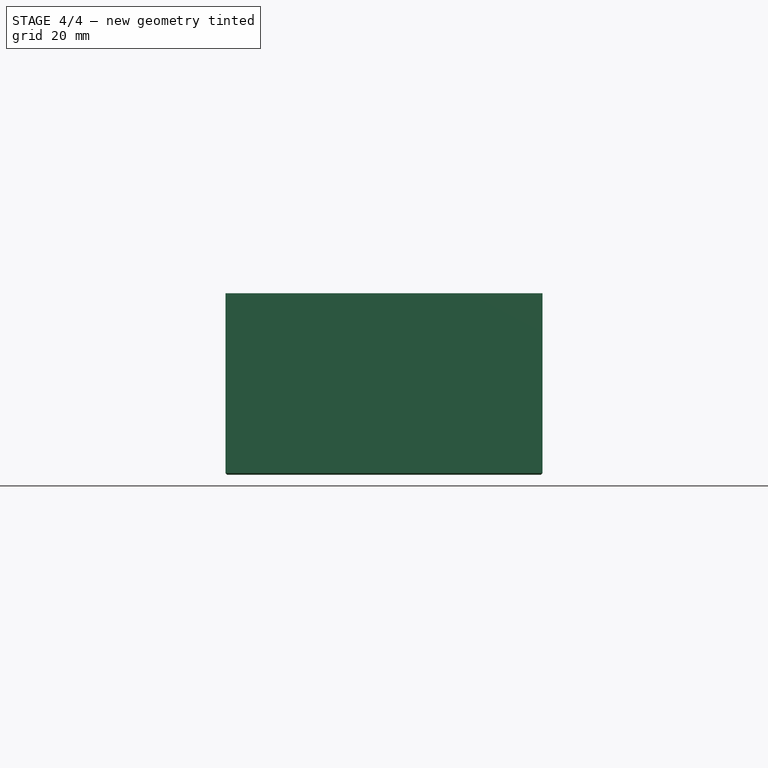
[diagram: stage 4 of 4 — front view after this stage's code; geometry added in this stage tinted green]
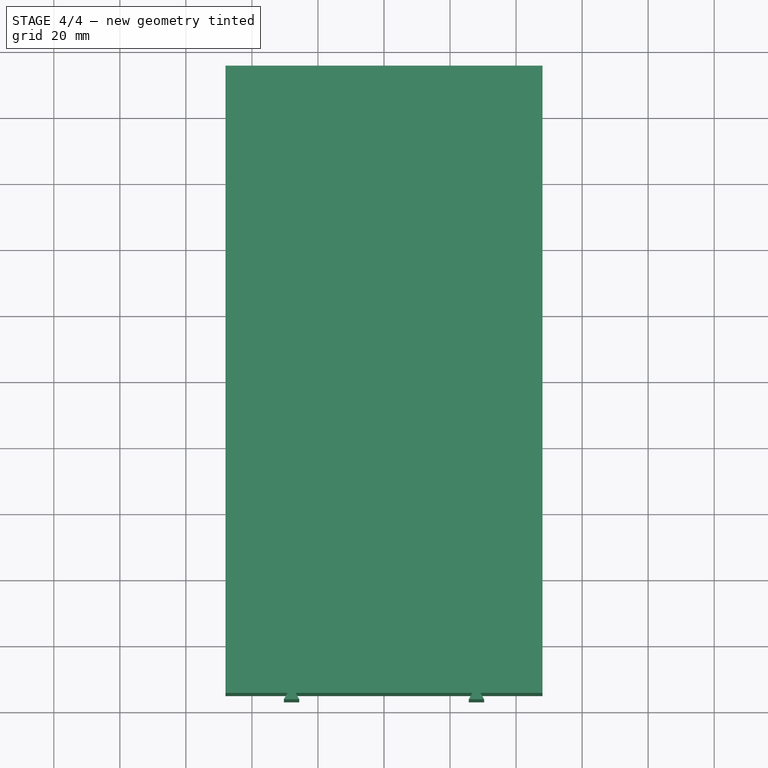
[diagram: stage 4 of 4 — top view after this stage's code; geometry added in this stage tinted green]
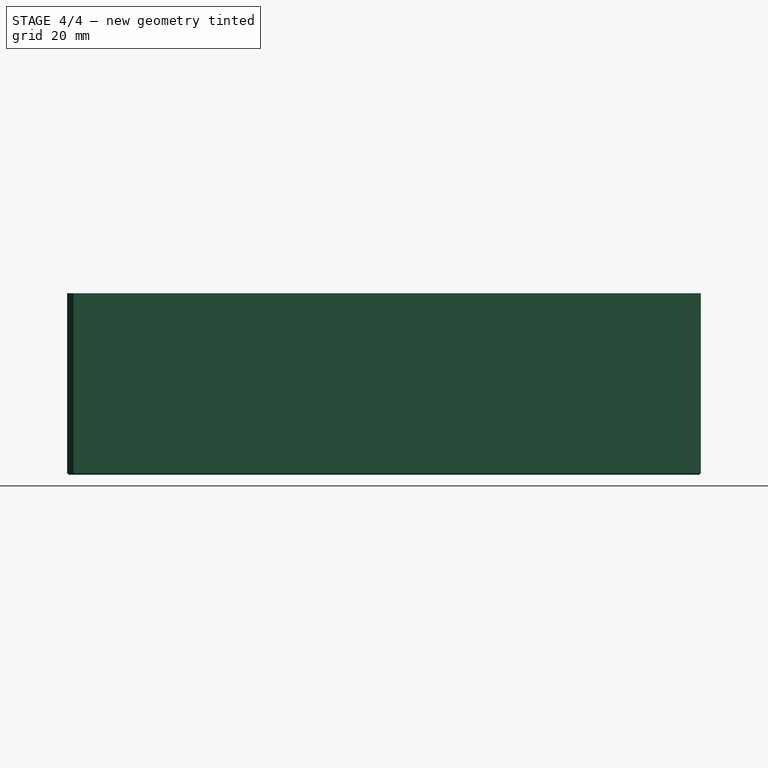
[diagram: stage 4 of 4 — right view after this stage's code; geometry added in this stage tinted green]
FEATURE [Spreadsheet::Sheet] Spreadsheet
  cells = B2='Tolerance; C2(Tolerance)==0.1 mm; B3='Height; C3(Height)==55 mm; B4='LockWidth; C4(LockWidth)==5 mm; B5='LockDepth; C5(LockDepth)==2 mm; B6='LockAngle; C6(LockAngle)==60 °
FEATURE [Sketcher::SketchObject] Sketch002  label="Template"
  FullyConstrained = true
  MapMode = 5
  Support = -> [XY_Plane]
  expr: Constraints[152] = <<Spreadsheet>>.Tolerance
  expr: Constraints[163] = <<Spreadsheet>>.LockDepth
  expr: Constraints[41] = <<Spreadsheet>>.LockWidth
  expr: Constraints[46] = <<Spreadsheet>>.LockAngle
  sketch-geometry (69):
    g0: LineSegment StartX=-48 StartY=95 StartZ=0 EndX=-29.3453 EndY=95 EndZ=0
    g1: LineSegment StartX=-29.3453 StartY=95 StartZ=0 EndX=-26.6547 EndY=95 EndZ=0
    g2: LineSegment StartX=48 StartY=95 StartZ=0 EndX=48 EndY=76.3453 EndZ=0
    g3: LineSegment StartX=48 StartY=76.3453 StartZ=0 EndX=48 EndY=73.6547 EndZ=0
    g4: LineSegment StartX=48 StartY=73.6547 StartZ=0 EndX=48 EndY=1.3453 EndZ=0
    g5: LineSegment StartX=48 StartY=1.3453 StartZ=0 EndX=48 EndY=-1.3453 EndZ=0
    g6: LineSegment StartX=-29.2298 StartY=-95 StartZ=0 EndX=-48 EndY=-95 EndZ=0
    g7: LineSegment StartX=-26.7702 StartY=-95 StartZ=0 EndX=-29.2298 EndY=-95 EndZ=0
    g8: LineSegment StartX=-48 StartY=-1.22983 StartZ=0 EndX=-48 EndY=1.22983 EndZ=0
    g9: LineSegment StartX=-48 StartY=1.22983 StartZ=0 EndX=-48 EndY=73.7702 EndZ=0
    g10: LineSegment StartX=-48 StartY=73.7702 StartZ=0 EndX=-48 EndY=76.2298 EndZ=0
    g11: LineSegment StartX=-48 StartY=76.2298 StartZ=0 EndX=-48 EndY=95 EndZ=0
    g12: LineSegment StartX=-48 StartY=-2.102e-13 StartZ=0 EndX=48 EndY=-2.102e-13 EndZ=0
    g13: LineSegment StartX=-48 StartY=75 StartZ=0 EndX=48 EndY=75 EndZ=0
    g14: LineSegment StartX=-28 StartY=95 StartZ=0 EndX=-28 EndY=75 EndZ=0
    g15: LineSegment StartX=-28 StartY=75 StartZ=0 EndX=-28 EndY=-2.132e-13 EndZ=0
    g16: LineSegment StartX=-28 StartY=-2.132e-13 StartZ=0 EndX=-28 EndY=-75 EndZ=0
    g17: LineSegment StartX=-30.5 StartY=93 StartZ=0 EndX=-25.5 EndY=93 EndZ=0
    g18: LineSegment StartX=-30.5 StartY=93 StartZ=0 EndX=-29.3453 EndY=95 EndZ=0
    g19: LineSegment StartX=-25.5 StartY=93 StartZ=0 EndX=-26.6547 EndY=95 EndZ=0
    g20: LineSegment StartX=-29.2298 StartY=-95 StartZ=0 EndX=-30.3268 EndY=-96.9 EndZ=0
    g21: LineSegment StartX=-30.3268 StartY=-96.9 StartZ=0 EndX=-25.6732 EndY=-96.9 EndZ=0
    g22: LineSegment StartX=-25.6732 StartY=-96.9 StartZ=0 EndX=-26.7702 EndY=-95 EndZ=0
    g23: LineSegment StartX=-28 StartY=-75 StartZ=0 EndX=-28 EndY=-95 EndZ=0
    g24: LineSegment StartX=-48 StartY=-73.7702 StartZ=0 EndX=-48 EndY=-1.22983 EndZ=0
    g25: LineSegment StartX=-48 StartY=-95 StartZ=0 EndX=-48 EndY=-76.2298 EndZ=0
    g26: LineSegment StartX=-48 StartY=-76.2298 StartZ=0 EndX=-48 EndY=-73.7702 EndZ=0
    g27: LineSegment StartX=48 StartY=-1.3453 StartZ=0 EndX=48 EndY=-73.6547 EndZ=0
    g28: LineSegment StartX=48 StartY=-73.6547 StartZ=0 EndX=48 EndY=-76.3453 EndZ=0
    g29: LineSegment StartX=48 StartY=-76.3453 StartZ=0 EndX=48 EndY=-95 EndZ=0
    g30: LineSegment StartX=-48 StartY=-75 StartZ=0 EndX=48 EndY=-75 EndZ=0
    g31: LineSegment StartX=48 StartY=76.3453 StartZ=0 EndX=46 EndY=77.5 EndZ=0
    g32: LineSegment StartX=46 StartY=77.5 StartZ=0 EndX=46 EndY=72.5 EndZ=0
    g33: LineSegment StartX=46 StartY=72.5 StartZ=0 EndX=48 EndY=73.6547 EndZ=0
    g34: LineSegment StartX=48 StartY=1.3453 StartZ=0 EndX=46 EndY=2.5 EndZ=0
    g35: LineSegment StartX=46 StartY=2.5 StartZ=0 EndX=46 EndY=-2.5 EndZ=0
    g36: LineSegment StartX=46 StartY=-2.5 StartZ=0 EndX=48 EndY=-1.3453 EndZ=0
    g37: LineSegment StartX=48 StartY=-73.6547 StartZ=0 EndX=46 EndY=-72.5 EndZ=0
    g38: LineSegment StartX=46 StartY=-72.5 StartZ=0 EndX=46 EndY=-77.5 EndZ=0
    g39: LineSegment StartX=46 StartY=-77.5 StartZ=0 EndX=48 EndY=-76.3453 EndZ=0
    g40: LineSegment StartX=-26.6547 StartY=95 StartZ=0 EndX=26.6547 EndY=95 EndZ=0
    g41: LineSegment StartX=26.6547 StartY=95 StartZ=0 EndX=29.3453 EndY=95 EndZ=0
    g42: LineSegment StartX=29.3453 StartY=95 StartZ=0 EndX=48 EndY=95 EndZ=0
    g43: LineSegment StartX=26.7702 StartY=-95 StartZ=0 EndX=-26.7702 EndY=-95 EndZ=0
    g44: LineSegment StartX=48 StartY=-95 StartZ=0 EndX=29.2298 EndY=-95 EndZ=0
    g45: LineSegment StartX=29.2298 StartY=-95 StartZ=0 EndX=26.7702 EndY=-95 EndZ=0
    g46: LineSegment StartX=26.6547 StartY=95 StartZ=0 EndX=25.5 EndY=93 EndZ=0
    g47: LineSegment StartX=25.5 StartY=93 StartZ=0 EndX=30.5 EndY=93 EndZ=0
    g48: LineSegment StartX=30.5 StartY=93 StartZ=0 EndX=29.3453 EndY=95 EndZ=0
    g49: LineSegment StartX=26.7702 StartY=-95 StartZ=0 EndX=25.6732 EndY=-96.9 EndZ=0
    g50: LineSegment StartX=25.6732 StartY=-96.9 StartZ=0 EndX=30.3268 EndY=-96.9 EndZ=0
    g51: LineSegment StartX=30.3268 StartY=-96.9 StartZ=0 EndX=29.2298 EndY=-95 EndZ=0
    g52: LineSegment StartX=-30.3268 StartY=93.1 StartZ=0 EndX=-29.2298 EndY=95 EndZ=0
    g53: LineSegment StartX=-30.3268 StartY=93.1 StartZ=0 EndX=-25.6732 EndY=93.1 EndZ=0
    g54: LineSegment StartX=-25.6732 StartY=93.1 StartZ=0 EndX=-26.7702 EndY=95 EndZ=0
    g55: LineSegment StartX=-30.3268 StartY=93.1 StartZ=0 EndX=-30.4134 EndY=93.15 EndZ=0
    g56: LineSegment StartX=-30.3268 StartY=93.1 StartZ=0 EndX=-30.3268 EndY=93 EndZ=0
    g57: LineSegment StartX=-25.6732 StartY=93.1 StartZ=0 EndX=-25.5866 EndY=93.15 EndZ=0
    g58: LineSegment StartX=-30.3268 StartY=93.1 StartZ=0 EndX=-30.3268 EndY=95 EndZ=0
    g59: LineSegment StartX=-30.3268 StartY=-96.9 StartZ=0 EndX=-30.3268 EndY=-95 EndZ=0
    g60: LineSegment StartX=-48 StartY=-76.2298 StartZ=0 EndX=-46.1 EndY=-77.3268 EndZ=0
    g61: LineSegment StartX=-46.1 StartY=-77.3268 StartZ=0 EndX=-46.1 EndY=-72.6732 EndZ=0
    g62: LineSegment StartX=-46.1 StartY=-72.6732 StartZ=0 EndX=-48 EndY=-73.7702 EndZ=0
    g63: LineSegment StartX=-48 StartY=-1.22983 StartZ=0 EndX=-46.1 EndY=-2.32679 EndZ=0
    g64: LineSegment StartX=-46.1 StartY=-2.32679 StartZ=0 EndX=-46.1 EndY=2.32679 EndZ=0
    g65: LineSegment StartX=-46.1 StartY=2.32679 StartZ=0 EndX=-48 EndY=1.22983 EndZ=0
    g66: LineSegment StartX=-48 StartY=73.7702 StartZ=0 EndX=-46.1 EndY=72.6732 EndZ=0
    g67: LineSegment StartX=-46.1 StartY=72.6732 StartZ=0 EndX=-46.1 EndY=77.3268 EndZ=0
    g68: LineSegment StartX=-46.1 StartY=77.3268 StartZ=0 EndX=-48 EndY=76.2298 EndZ=0
  constraints (193):
    c: Coincident(g42,g2)
    c: Coincident(g29,g44)
    c: Coincident(g6,g25)
    c: Coincident(g11,g0)
    c: Symmetric(g6,g42,g-1)
    c: Coincident(g0,g1)
    c: Horizontal(g0)
    c: Coincident(g1,g40)
    c: Horizontal(g1)
    c: Coincident(g2,g3)
    c: Vertical(g2)
    c: Coincident(g3,g4)
    c: Vertical(g3)
    c: Coincident(g4,g5)
    c: Vertical(g4)
    c: Coincident(g5,g27)
    c: Vertical(g5)
    c: Coincident(g7,g6)
    c: Horizontal(g6)
    c: Coincident(g43,g7)
    c: Horizontal(g7)
    c: Coincident(g24,g8)
    c: Coincident(g8,g9)
    c: Vertical(g8)
    c: Coincident(g9,g10)
    c: Vertical(g9)
    c: Coincident(g10,g11)
    c: Vertical(g10)
    c: Vertical(g11)
    c: Horizontal(g12)
    c: Symmetric(g24,g9,g12)
    c: Symmetric(g4,g27,g12)
    c: Horizontal(g13)
    c: Symmetric(g9,g11,g13)
    c: Symmetric(g4,g2,g13)
    c: PointOnObject(g14,g13)
    c: Coincident(g14,g15)
    c: PointOnObject(g15,g12)
    c: Vertical(g15)
    c: Coincident(g15,g16)
    c: Equal(g15,g16)
    c: DistanceX(g17,g17) = 5
    c: Coincident(g18,g17)
    c: Coincident(g18,g0)
    c: Coincident(g19,g17)
    c: Coincident(g19,g40)
    c: Angle(g17,g18) = 1.0472
    c: Vertical(g16)
    c: Coincident(g6,g20)
    c: Coincident(g20,g21)
    c: Horizontal(g21)
    c: Coincident(g21,g22)
    c: Coincident(g22,g43)
    c: Coincident(g23,g16)
    c: Vertical(g23)
    c: Coincident(g26,g24)
    c: Vertical(g24)
    c: Coincident(g25,g26)
    c: Vertical(g25)
    c: Vertical(g26)
    c: Coincident(g27,g28)
    c: Vertical(g27)
    c: Coincident(g28,g29)
    c: Vertical(g28)
    c: Vertical(g29)
    c: Horizontal(g30)
    c: PointOnObject(g16,g30)
    c: Symmetric(g25,g24,g30)
    c: Symmetric(g29,g27,g30)
    c: Equal(g14,g23)
    c: DistanceY(g13,g42) = 20
    c: Equal(g1,g3)
    c: Equal(g3,g5)
    c: Equal(g5,g28)
    c: Coincident(g2,g31)
    c: Coincident(g31,g32)
    c: Vertical(g32)
    c: Coincident(g32,g33)
    c: Coincident(g33,g4)
    c: Equal(g17,g32)
    c: Equal(g31,g33)
    c: Coincident(g4,g34)
    c: Coincident(g34,g35)
    c: Vertical(g35)
    c: Coincident(g35,g36)
    c: Coincident(g36,g27)
    c: Equal(g33,g34)
    c: Equal(g34,g36)
    c: Equal(g32,g35)
    c: Coincident(g27,g37)
    c: Coincident(g37,g38)
    c: Vertical(g38)
    c: Coincident(g38,g39)
    c: Coincident(g39,g29)
    c: Equal(g36,g37)
    c: Equal(g37,g39)
    c: Equal(g35,g38)
    c: Equal(g7,g26)
    c: Equal(g26,g8)
    c: Equal(g8,g10)
    c: Coincident(g40,g41)
    c: Horizontal(g40)
    c: Coincident(g41,g42)
    c: Horizontal(g41)
    c: Horizontal(g42)
    c: Symmetric(g0,g19,g14)
    c: PointOnObject(g14,g1)
    c: Coincident(g45,g43)
    c: Horizontal(g43)
    c: Coincident(g44,g45)
    c: Horizontal(g44)
    c: Horizontal(g45)
    c: Coincident(g40,g46)
    c: Coincident(g46,g47)
    c: Horizontal(g47)
    c: Coincident(g47,g48)
    c: Coincident(g48,g42)
    c: Equal(g1,g41)
    c: Equal(g19,g46)
    c: Equal(g46,g48)
    c: Equal(g17,g47)
    c: Equal(g0,g42)
    c: Equal(g2,g42)
    c: Equal(g7,g45)
    c: Equal(g44,g6)
    c: Coincident(g43,g49)
    c: Coincident(g49,g50)
    c: Horizontal(g50)
    c: Coincident(g50,g51)
    c: Coincident(g51,g44)
    c: Equal(g22,g49)
    c: Equal(g49,g51)
    c: Equal(g50,g21)
    c: Symmetric(g22,g6,g23)
    c: PointOnObject(g52,g1)
    c: Coincident(g53,g52)
    c: Horizontal(g53)
    c: Coincident(g54,g53)
    c: PointOnObject(g54,g1)
    c: Coincident(g55,g52)
    c: PointOnObject(g55,g18)
    c: Coincident(g56,g52)
    c: PointOnObject(g56,g17)
    c: Vertical(g56)
    c: Coincident(g57,g53)
    c: PointOnObject(g57,g19)
    c: Perpendicular(g19,g57)
    c: Perpendicular(g52,g55)
    c: Parallel(g52,g18)
    c: Parallel(g54,g19)
    c: Equal(g57,g56)
    c: Equal(g56,g55)
    c: DistanceY(g17,g52) = 0.1
    c: Coincident(g58,g52)
    c: PointOnObject(g58,g0)
    c: Vertical(g58)
    c: Coincident(g59,g20)
    c: PointOnObject(g59,g6)
    c: Vertical(g59)
    c: Equal(g21,g53)
    c: Equal(g58,g59)
    c: Equal(g22,g20)
    c: Equal(g20,g52)
    c: DistanceY(g17,g19) = 2
    c: Equal(g31,g48)
    c: Horizontal(g17)
    c: Equal(g18,g19)
    c: Coincident(g25,g60)
    c: Coincident(g60,g61)
    c: Vertical(g61)
    c: Coincident(g61,g62)
    c: Coincident(g62,g24)
    c: Coincident(g24,g63)
    c: Coincident(g63,g64)
    c: Vertical(g64)
    c: Coincident(g64,g65)
    c: Coincident(g65,g9)
    c: Coincident(g9,g66)
    c: Coincident(g66,g67)
    c: Vertical(g67)
    c: Coincident(g67,g68)
    c: Coincident(g68,g11)
    c: Equal(g60,g62)
    c: Equal(g63,g65)
    c: Equal(g66,g68)
    c: Equal(g66,g65)
    c: Equal(g63,g62)
    c: Equal(g60,g51)
    c: Equal(g50,g61)
    c: Equal(g61,g64)
    c: Equal(g64,g67)
    c: DistanceX(g0,g2) = 96
    c: DistanceY(g6,g0) = 190
FEATURE [PartDesign::Body] Body
  Group = -> [Sketch002]
  Origin = -> Origin
FEATURE [PartDesign::ShapeBinder] ShapeBinder
  Support = -> [Sketch002]
  TraceSupport = false
FEATURE [Sketcher::SketchObject] Sketch
  ExternalGeometry = -> [ShapeBinder]
  FullyConstrained = true
  MapMode = 5
  Support = -> [XY_Plane001]
  sketch-geometry (44):
    g0: LineSegment StartX=48 StartY=95 StartZ=0 EndX=29.3453 EndY=95 EndZ=0
    g1: LineSegment StartX=29.3453 StartY=95 StartZ=0 EndX=30.5 EndY=93 EndZ=0
    g2: LineSegment StartX=30.5 StartY=93 StartZ=0 EndX=25.5 EndY=93 EndZ=0
    g3: LineSegment StartX=25.5 StartY=93 StartZ=0 EndX=26.6547 EndY=95 EndZ=0
    g4: LineSegment StartX=26.6547 StartY=95 StartZ=0 EndX=-26.6547 EndY=95 EndZ=0
    g5: LineSegment StartX=-26.6547 StartY=95 StartZ=0 EndX=-25.5 EndY=93 EndZ=0
    g6: LineSegment StartX=-25.5 StartY=93 StartZ=0 EndX=-30.5 EndY=93 EndZ=0
    g7: LineSegment StartX=-30.5 StartY=93 StartZ=0 EndX=-29.3453 EndY=95 EndZ=0
    g8: LineSegment StartX=-29.3453 StartY=95 StartZ=0 EndX=-48 EndY=95 EndZ=0
    g9: LineSegment StartX=-48 StartY=95 StartZ=0 EndX=-48 EndY=76.2298 EndZ=0
    g10: LineSegment StartX=-48 StartY=76.2298 StartZ=0 EndX=-46.1 EndY=77.3268 EndZ=0
    g11: LineSegment StartX=-46.1 StartY=77.3268 StartZ=0 EndX=-46.1 EndY=72.6732 EndZ=0
    g12: LineSegment StartX=-46.1 StartY=72.6732 StartZ=0 EndX=-48 EndY=73.7702 EndZ=0
    g13: LineSegment StartX=-48 StartY=73.7702 StartZ=0 EndX=-48 EndY=1.22983 EndZ=0
    g14: LineSegment StartX=-48 StartY=1.22983 StartZ=0 EndX=-46.1 EndY=2.32679 EndZ=0
    g15: LineSegment StartX=-46.1 StartY=2.32679 StartZ=0 EndX=-46.1 EndY=-2.32679 EndZ=0
    g16: LineSegment StartX=-46.1 StartY=-2.32679 StartZ=0 EndX=-48 EndY=-1.22983 EndZ=0
    g17: LineSegment StartX=-48 StartY=-1.22983 StartZ=0 EndX=-48 EndY=-73.7702 EndZ=0
    g18: LineSegment StartX=-48 StartY=-73.7702 StartZ=0 EndX=-46.1 EndY=-72.6732 EndZ=0
    g19: LineSegment StartX=-46.1 StartY=-72.6732 StartZ=0 EndX=-46.1 EndY=-77.3268 EndZ=0
    g20: LineSegment StartX=-46.1 StartY=-77.3268 StartZ=0 EndX=-48 EndY=-76.2298 EndZ=0
    g21: LineSegment StartX=-48 StartY=-76.2298 StartZ=0 EndX=-48 EndY=-95 EndZ=0
    g22: LineSegment StartX=-48 StartY=-95 StartZ=0 EndX=-29.2298 EndY=-95 EndZ=0
    g23: LineSegment StartX=-29.2298 StartY=-95 StartZ=0 EndX=-30.3268 EndY=-96.9 EndZ=0
    g24: LineSegment StartX=-30.3268 StartY=-96.9 StartZ=0 EndX=-25.6732 EndY=-96.9 EndZ=0
    g25: LineSegment StartX=-25.6732 StartY=-96.9 StartZ=0 EndX=-26.7702 EndY=-95 EndZ=0
    g26: LineSegment StartX=-26.7702 StartY=-95 StartZ=0 EndX=26.7702 EndY=-95 EndZ=0
    g27: LineSegment StartX=26.7702 StartY=-95 StartZ=0 EndX=25.6732 EndY=-96.9 EndZ=0
    g28: LineSegment StartX=25.6732 StartY=-96.9 StartZ=0 EndX=30.3268 EndY=-96.9 EndZ=0
    g29: LineSegment StartX=30.3268 StartY=-96.9 StartZ=0 EndX=29.2298 EndY=-95 EndZ=0
    g30: LineSegment StartX=29.2298 StartY=-95 StartZ=0 EndX=48 EndY=-95 EndZ=0
    g31: LineSegment StartX=48 StartY=-95 StartZ=0 EndX=48 EndY=-76.3453 EndZ=0
    g32: LineSegment StartX=48 StartY=-76.3453 StartZ=0 EndX=46 EndY=-77.5 EndZ=0
    g33: LineSegment StartX=46 StartY=-77.5 StartZ=0 EndX=46 EndY=-72.5 EndZ=0
    g34: LineSegment StartX=46 StartY=-72.5 StartZ=0 EndX=48 EndY=-73.6547 EndZ=0
    g35: LineSegment StartX=48 StartY=-73.6547 StartZ=0 EndX=48 EndY=-1.3453 EndZ=0
    g36: LineSegment StartX=48 StartY=-1.3453 StartZ=0 EndX=46 EndY=-2.5 EndZ=0
    g37: LineSegment StartX=46 StartY=-2.5 StartZ=0 EndX=46 EndY=2.5 EndZ=0
    g38: LineSegment StartX=46 StartY=2.5 StartZ=0 EndX=48 EndY=1.3453 EndZ=0
    g39: LineSegment StartX=48 StartY=1.3453 StartZ=0 EndX=48 EndY=73.6547 EndZ=0
    g40: LineSegment StartX=48 StartY=73.6547 StartZ=0 EndX=46 EndY=72.5 EndZ=0
    g41: LineSegment StartX=46 StartY=72.5 StartZ=0 EndX=46 EndY=77.5 EndZ=0
    g42: LineSegment StartX=46 StartY=77.5 StartZ=0 EndX=48 EndY=76.3453 EndZ=0
    g43: LineSegment StartX=48 StartY=76.3453 StartZ=0 EndX=48 EndY=95 EndZ=0
  constraints (88):
    c: Coincident(g-14,g0)
    c: Coincident(g0,g-14)
    c: Coincident(g0,g1)
    c: Coincident(g1,g-15)
    c: Coincident(g1,g2)
    c: Coincident(g2,g-15)
    c: Coincident(g2,g3)
    c: Coincident(g3,g-16)
    c: Coincident(g3,g4)
    c: Coincident(g4,g-16)
    c: Coincident(g4,g5)
    c: Coincident(g5,g-17)
    c: Coincident(g5,g6)
    c: Coincident(g6,g-17)
    c: Coincident(g6,g7)
    c: Coincident(g7,g-18)
    c: Coincident(g7,g8)
    c: Coincident(g8,g-18)
    c: Coincident(g8,g9)
    c: Coincident(g9,g-19)
    c: Coincident(g9,g10)
    c: Coincident(g10,g-19)
    c: Coincident(g10,g11)
    c: Coincident(g11,g-20)
    c: Coincident(g11,g12)
    c: Coincident(g12,g-20)
    c: Coincident(g12,g13)
    c: Coincident(g13,g-24)
    c: Coincident(g13,g14)
    c: Coincident(g14,g-24)
    c: Coincident(g14,g15)
    c: Coincident(g15,g-23)
    c: Coincident(g15,g16)
    c: Coincident(g16,g-23)
    c: Coincident(g16,g17)
    c: Coincident(g17,g-22)
    c: Coincident(g17,g18)
    c: Coincident(g18,g-22)
    c: Coincident(g18,g19)
    c: Coincident(g19,g-21)
    c: Coincident(g19,g20)
    c: Coincident(g20,g-21)
    c: Coincident(g20,g21)
    c: Coincident(g21,g-3)
    c: Coincident(g21,g22)
    c: Coincident(g22,g-3)
    c: Coincident(g22,g23)
    c: Coincident(g23,g-4)
    c: Coincident(g23,g24)
    c: Coincident(g24,g-4)
    c: Coincident(g24,g25)
    c: Coincident(g25,g-5)
    c: Coincident(g25,g26)
    c: Coincident(g26,g-5)
    c: Coincident(g26,g27)
    c: Coincident(g27,g-6)
    c: Coincident(g27,g28)
    c: Coincident(g28,g-6)
    c: Coincident(g28,g29)
    c: Coincident(g29,g-7)
    c: Coincident(g29,g30)
    c: Coincident(g30,g-7)
    c: Coincident(g30,g31)
    c: Coincident(g31,g-8)
    c: Coincident(g31,g32)
    c: Coincident(g32,g-8)
    c: Coincident(g32,g33)
    c: Coincident(g33,g-9)
    c: Coincident(g33,g34)
    c: Coincident(g34,g-9)
    c: Coincident(g34,g35)
    c: Coincident(g35,g-10)
    c: Coincident(g35,g36)
    c: Coincident(g36,g-10)
    c: Coincident(g36,g37)
    c: Coincident(g37,g-11)
    c: Coincident(g37,g38)
    c: Coincident(g38,g-11)
    c: Coincident(g38,g39)
    c: Coincident(g39,g-12)
    c: Coincident(g39,g40)
    c: Coincident(g40,g-12)
    c: Coincident(g40,g41)
    c: Coincident(g41,g-13)
    c: Coincident(g41,g42)
    c: Coincident(g42,g-13)
    c: Coincident(g42,g43)
    c: Coincident(g43,g0)
FEATURE [PartDesign::Pad] Pad
  Direction = (0,0,1)
  Length = 55
  Length2 = 10
  Profile = -> Sketch
  ReferenceAxis = -> Sketch [N_Axis]
  Type = 0
  expr: Length = <<Spreadsheet>>.Height
FEATURE [PartDesign::Chamfer] Chamfer
  Angle = 45
  Base = -> Pad [Face45]
  BaseFeature = -> Pad
  ChamferType = 0
  FlipDirection = false
  Size = 0.5
  Size2 = 1
  SupportTransform = false
  UseAllEdges = false
FEATURE [PartDesign::Chamfer] Chamfer001
  Angle = 45
  Base = -> Pad001 [Face25]
  BaseFeature = -> Pad001
  ChamferType = 0
  FlipDirection = false
  Size = 0.5
  Size2 = 1
  SupportTransform = false
  UseAllEdges = false
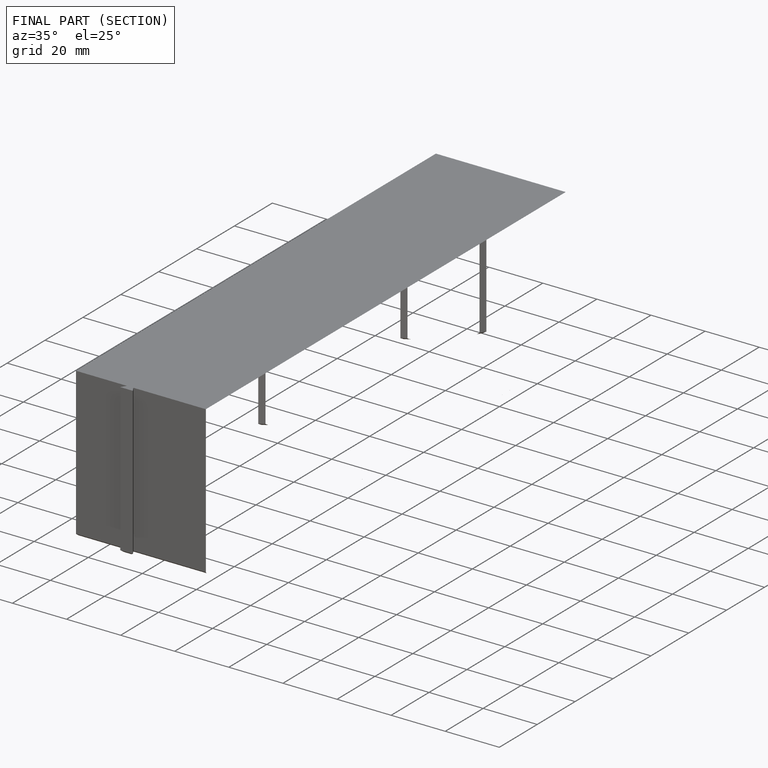
[diagram: finished part — half-section view (interior)]
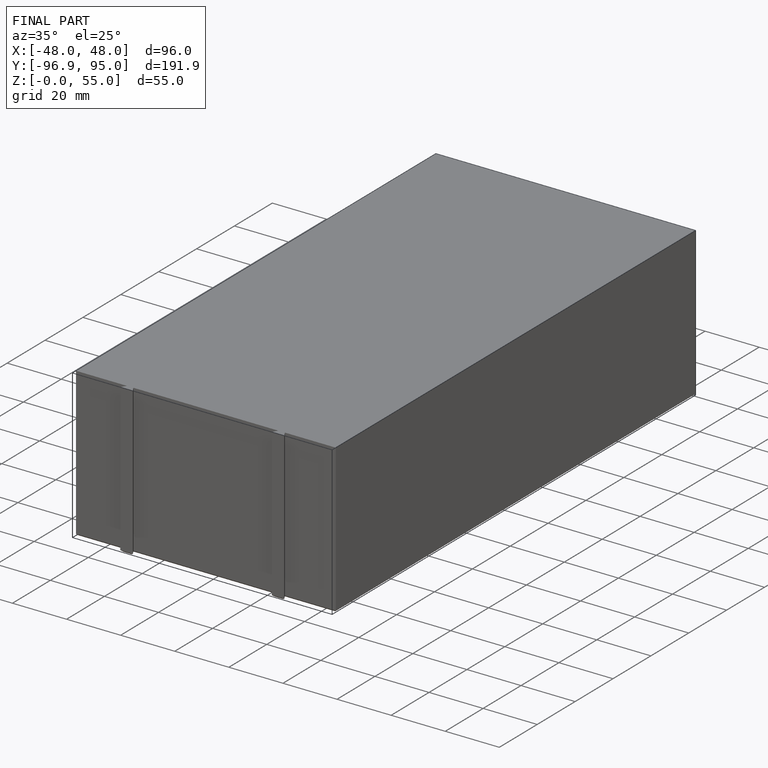
[diagram: finished part — iso view with bounding-box wireframe]
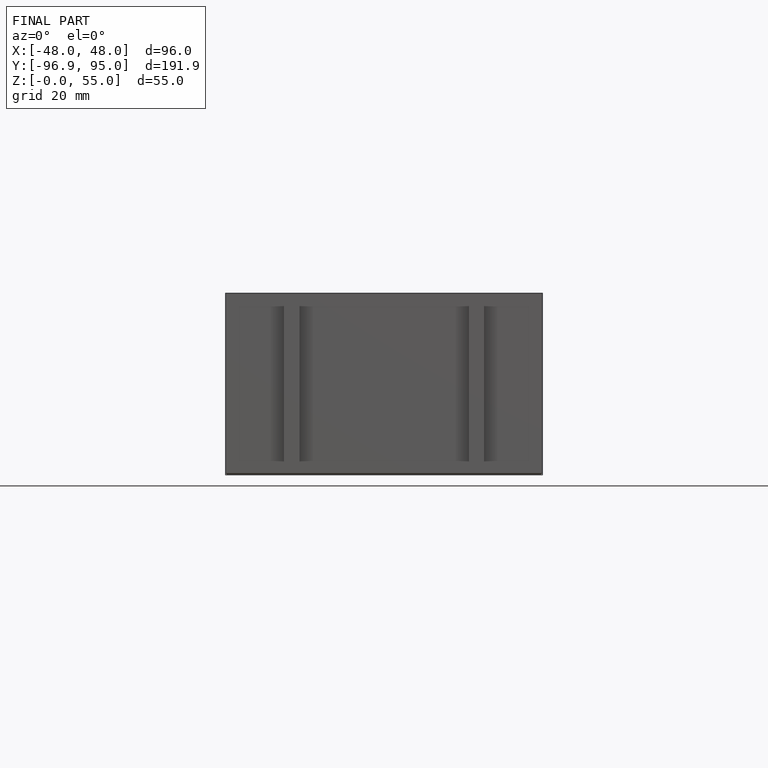
[diagram: finished part — front view with bounding-box wireframe]
